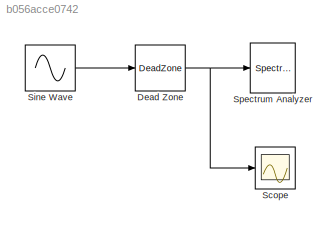
MODEL slx_b056acce0742
KIND model
CONFIG AbsTol = auto
CONFIG EnableMultiTasking = on
CONFIG FixedStep = 2e-6
CONFIG MaxStep = auto
CONFIG MinStep = auto
CONFIG RelTol = 1e-3
CONFIG SampleTimeConstraint = Unconstrained
CONFIG Solver = FixedStepDiscrete
CONFIG SolverName = FixedStepDiscrete
CONFIG StartTime = 0.0
CONFIG StopTime = 0.001
BLOCK [DeadZone] Dead Zone
  LinearizeAsGain = off
  LowerValue = -2.8
  SaturateOnIntegerOverflow = off
  UpperValue = 2.1
BLOCK [Scope] Scope
  NumInputPorts = 1
  Ports = [1]
  ScopeSpecificationString = Simulink.scopes.TimeScopeBlockCfg('CurrentConfiguration', extmgr.ConfigurationSet(extmgr.Configuration('Core','General UI',true),extmgr.Configuration('Core','Source UI',true),extmgr.Configuration('Sources','WiredSimulink',true),extmgr.Configuration('Visuals','Time Domain',true,'SerializedDisplays',{struct('MinYLimReal','-5.3375','MaxYLimReal','6.0375','YLabelReal','','MinYLimMag','0.00000','MaxYLi...<+1382ch>
BLOCK [Sin] Sine Wave
  Amplitude = 7
  Frequency = 2000*pi
  Ports = [0, 1]
  SampleTime = 2e-6
  Samples = 500
  SineType = Sample based
BLOCK [SpectrumAnalyzer] Spectrum Analyzer
  NumInputPorts = 1
  Ports = [1]
  ScopeSpecificationString = spbscopes.SpectrumAnalyzerBlockCfg('CurrentConfiguration', extmgr.ConfigurationSet(extmgr.Configuration('Core','General UI',true,'DisplayFullSourceName',true,'FigureColor',[0.247058823529412 0.247058823529412 0.247058823529412]),extmgr.Configuration('Core','Source UI',true),extmgr.Configuration('Sources','Simulink',false),extmgr.Configuration('Sources','SimulinkEvent',false),extmgr.Configuration('...<+3596ch>
NET Dead Zone:1 -> Scope:1, Spectrum Analyzer:1
LINE Sine Wave:1 -> Dead Zone:1
note: NET lines group one-source signal fan-out (src -> all destinations, sorted); 1:1 wires keep LINE
